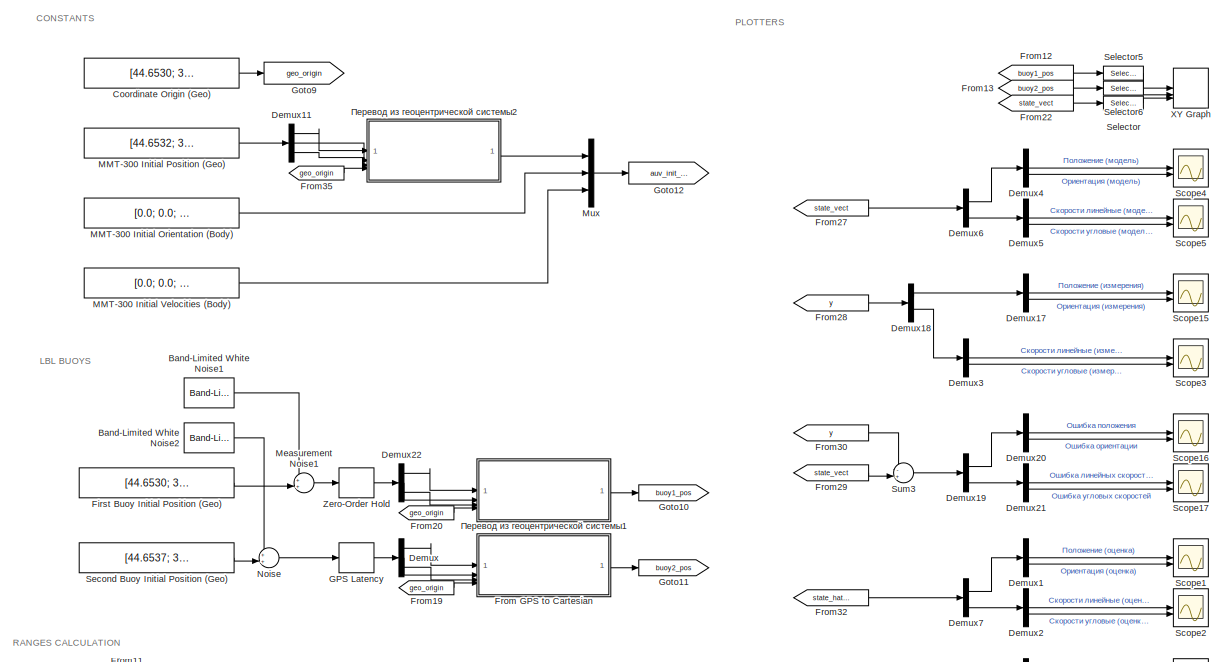
[diagram: root canvas - part 1/3, full width, top band]
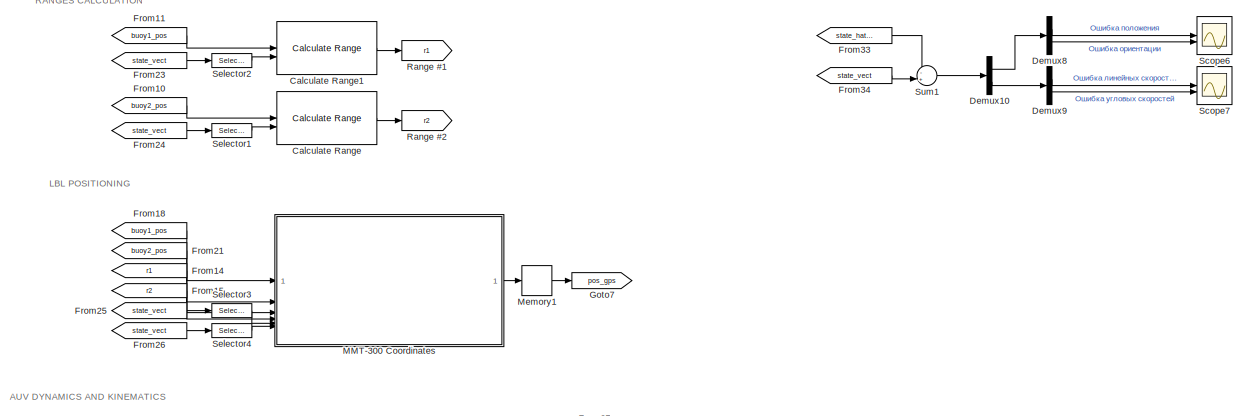
[diagram: root canvas - part 2/3, full width, middle band]
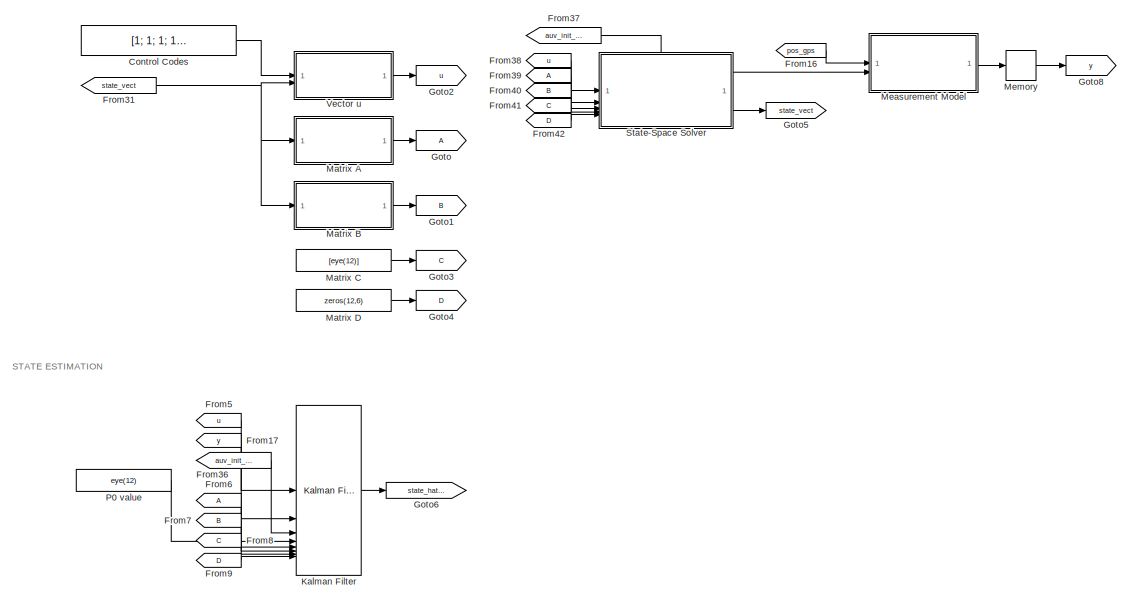
[diagram: root canvas - part 3/3, full width, bottom band]
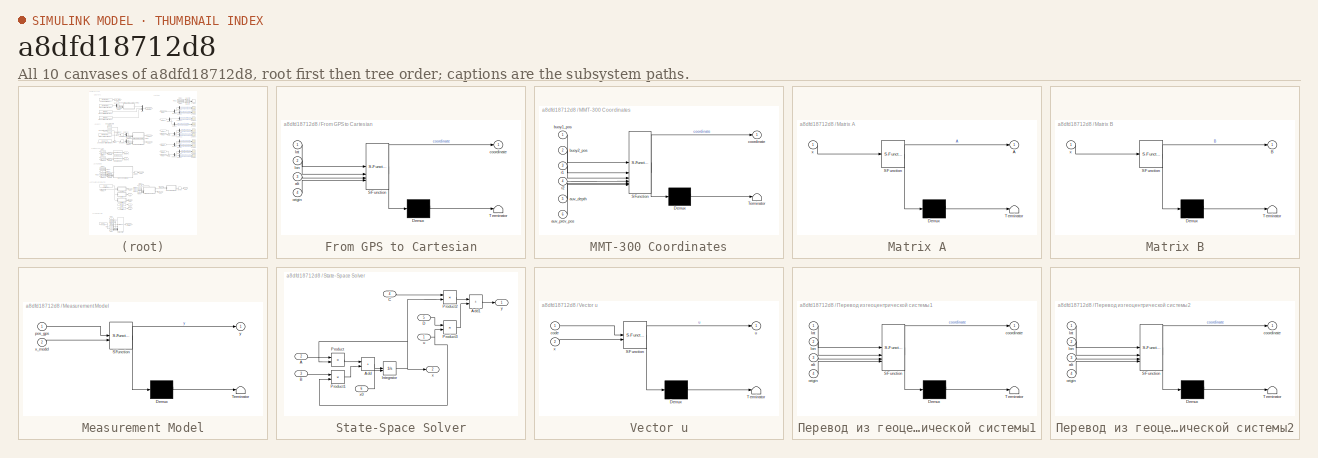
[diagram: thumbnail index - all 10 canvases of the model, root first then tree order]
MODEL slx_a8dfd18712d8
KIND model
CONFIG AbsTol = auto
CONFIG EnableMultiTasking = off
CONFIG FixedStep = auto
CONFIG MaxStep = auto
CONFIG MinStep = auto
CONFIG RelTol = 1e-3
CONFIG SampleTimeConstraint = Unconstrained
CONFIG SolverName = VariableStepAuto
CONFIG StartTime = 0.0
CONFIG StopTime = 60
BLOCK [Reference] Band-Limited White Noise1  REF=simulink/Sources/Band-Limited
White Noise
  SourceBlock = simulink/Sources/Band-Limited\nWhite Noise
  SourceType = Band-Limited White Noise.
BLOCK [Reference] Band-Limited White Noise2  REF=simulink/Sources/Band-Limited
White Noise
  SourceBlock = simulink/Sources/Band-Limited\nWhite Noise
  SourceType = Band-Limited White Noise.
BLOCK [Reference] Calculate Range  REF=aerolibguid/Calculate
Range
  SourceBlock = aerolibguid/Calculate\nRange
  SourceType = Calculate Range
BLOCK [Reference] Calculate Range1  REF=aerolibguid/Calculate
Range
  SourceBlock = aerolibguid/Calculate\nRange
  SourceType = Calculate Range
BLOCK [Constant] Control Codes
  Value = [1; 1; 1; 1; 0; 0]
BLOCK [Constant] Coordinate Origin (Geo)
  Value = [44.6530; 33.5389; 0.5]
BLOCK [Demux] Demux
  Outputs = 3
BLOCK [Demux] Demux1
  Outputs = 2
BLOCK [Demux] Demux10
  Outputs = 2
BLOCK [Demux] Demux11
  Outputs = 3
BLOCK [Demux] Demux17
  Outputs = 2
BLOCK [Demux] Demux18
  Outputs = 2
BLOCK [Demux] Demux19
  Outputs = 2
BLOCK [Demux] Demux2
  Outputs = 2
BLOCK [Demux] Demux20
  Outputs = 2
BLOCK [Demux] Demux21
  Outputs = 2
BLOCK [Demux] Demux22
  Outputs = 3
BLOCK [Demux] Demux3
  Outputs = 2
BLOCK [Demux] Demux4
  Outputs = 2
BLOCK [Demux] Demux5
  Outputs = 2
BLOCK [Demux] Demux6
  Outputs = 2
BLOCK [Demux] Demux7
  Outputs = 2
BLOCK [Demux] Demux8
  Outputs = 2
BLOCK [Demux] Demux9
  Outputs = 2
BLOCK [Constant] First Buoy Initial Position (Geo)
  Value = [44.6530; 33.5389; 0.5]
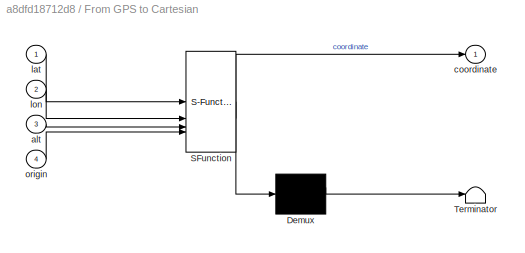
BLOCK [SubSystem] From GPS to Cartesian
  ErrorFcn = Stateflow.Translate.translate
  PermitHierarchicalResolution = ExplicitOnly
  SFBlockType = MATLAB Function
  TreatAsAtomicUnit = on
BLOCK [Demux] From GPS to Cartesian/ Demux 
  Outputs = 1
BLOCK [S-Function] From GPS to Cartesian/ SFunction 
  EnableBusSupport = on
  FunctionName = sf_sfun
  PortCounts = [4 2]
  SFcnIsStateOwnerBlock = off
  SFunctionDeploymentMode = off
  Tag = Stateflow S-Function 7
BLOCK [Terminator] From GPS to Cartesian/ Terminator 
BLOCK [Inport] From GPS to Cartesian/alt
  Port = 3
BLOCK [Outport] From GPS to Cartesian/coordinate
BLOCK [Inport] From GPS to Cartesian/lat
BLOCK [Inport] From GPS to Cartesian/lon
  Port = 2
BLOCK [Inport] From GPS to Cartesian/origin
  Port = 4
BLOCK [From] From10
  GotoTag = buoy2_pos
BLOCK [From] From11
  GotoTag = buoy1_pos
BLOCK [From] From12
  GotoTag = buoy1_pos
BLOCK [From] From13
  GotoTag = buoy2_pos
BLOCK [From] From14
  GotoTag = r1
BLOCK [From] From15
  GotoTag = r2
BLOCK [From] From16
  GotoTag = pos_gps
BLOCK [From] From17
  GotoTag = y
BLOCK [From] From18
  GotoTag = buoy1_pos
BLOCK [From] From19
  GotoTag = geo_origin
BLOCK [From] From20
  GotoTag = geo_origin
BLOCK [From] From21
  GotoTag = buoy2_pos
BLOCK [From] From22
  GotoTag = state_vect
BLOCK [From] From23
  GotoTag = state_vect
BLOCK [From] From24
  GotoTag = state_vect
BLOCK [From] From25
  GotoTag = state_vect
BLOCK [From] From26
  GotoTag = state_vect
BLOCK [From] From27
  GotoTag = state_vect
BLOCK [From] From28
  GotoTag = y
BLOCK [From] From29
  GotoTag = state_vect
BLOCK [From] From30
  GotoTag = y
BLOCK [From] From31
  GotoTag = state_vect
BLOCK [From] From32
  GotoTag = state_hat_vect
BLOCK [From] From33
  GotoTag = state_hat_vect
BLOCK [From] From34
  GotoTag = state_vect
BLOCK [From] From35
  GotoTag = geo_origin
BLOCK [From] From36
  GotoTag = auv_init_state
BLOCK [From] From37
  GotoTag = auv_init_state
BLOCK [From] From38
  GotoTag = u
BLOCK [From] From39
BLOCK [From] From40
  GotoTag = B
BLOCK [From] From41
  GotoTag = C
BLOCK [From] From42
  GotoTag = D
BLOCK [From] From5
  GotoTag = u
BLOCK [From] From6
BLOCK [From] From7
  GotoTag = B
BLOCK [From] From8
  GotoTag = C
BLOCK [From] From9
  GotoTag = D
BLOCK [ZeroOrderHold] GPS Latency
BLOCK [Goto] Goto
BLOCK [Goto] Goto1
  GotoTag = B
BLOCK [Goto] Goto10
  GotoTag = buoy1_pos
BLOCK [Goto] Goto11
  GotoTag = buoy2_pos
BLOCK [Goto] Goto12
  GotoTag = auv_init_state
BLOCK [Goto] Goto2
  GotoTag = u
BLOCK [Goto] Goto3
  GotoTag = C
BLOCK [Goto] Goto4
  GotoTag = D
BLOCK [Goto] Goto5
  GotoTag = state_vect
BLOCK [Goto] Goto6
  GotoTag = state_hat_vect
BLOCK [Goto] Goto7
  GotoTag = pos_gps
BLOCK [Goto] Goto8
  GotoTag = y
BLOCK [Goto] Goto9
  GotoTag = geo_origin
BLOCK [Reference] Kalman Filter  REF=ctrlSharedLib/Kalman Filter
  SourceBlock = ctrlSharedLib/Kalman Filter
  SourceType = ctrlKalmanFilter
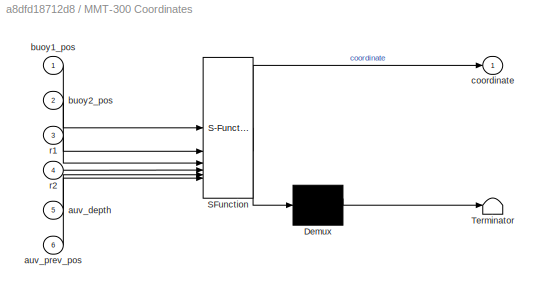
BLOCK [SubSystem] MMT-300 Coordinates
  ErrorFcn = Stateflow.Translate.translate
  PermitHierarchicalResolution = ExplicitOnly
  SFBlockType = MATLAB Function
  TreatAsAtomicUnit = on
BLOCK [Demux] MMT-300 Coordinates/ Demux 
  Outputs = 1
BLOCK [S-Function] MMT-300 Coordinates/ SFunction 
  EnableBusSupport = on
  FunctionName = sf_sfun
  PortCounts = [6 2]
  SFcnIsStateOwnerBlock = off
  SFunctionDeploymentMode = off
  Tag = Stateflow S-Function 11
BLOCK [Terminator] MMT-300 Coordinates/ Terminator 
BLOCK [Inport] MMT-300 Coordinates/auv_depth
  Port = 5
BLOCK [Inport] MMT-300 Coordinates/auv_prev_pos
  Port = 6
BLOCK [Inport] MMT-300 Coordinates/buoy1_pos
BLOCK [Inport] MMT-300 Coordinates/buoy2_pos
  Port = 2
BLOCK [Outport] MMT-300 Coordinates/coordinate
BLOCK [Inport] MMT-300 Coordinates/r1
  Port = 3
BLOCK [Inport] MMT-300 Coordinates/r2
  Port = 4
BLOCK [Constant] MMT-300 Initial Orientation (Body)
  Value = [0.0; 0.0; 0.0]
BLOCK [Constant] MMT-300 Initial Position (Geo)
  Value = [44.6532; 33.5395; 0.5]
BLOCK [Constant] MMT-300 Initial Velocities (Body)
  Value = [0.0; 0.0; 0.0; 0.0; 0.0; 0.0]
BLOCK [SubSystem] Matrix A
  ErrorFcn = Stateflow.Translate.translate
  PermitHierarchicalResolution = ExplicitOnly
  SFBlockType = MATLAB Function
  TreatAsAtomicUnit = on
BLOCK [Demux] Matrix A/ Demux 
  Outputs = 1
BLOCK [S-Function] Matrix A/ SFunction 
  EnableBusSupport = on
  FunctionName = sf_sfun
  Parameters = D_LIN,D_QUAD,I0,M,M_A,m,r_b_b,r_g_b
  PortCounts = [1 2]
  SFcnIsStateOwnerBlock = off
  SFunctionDeploymentMode = off
  Tag = Stateflow S-Function 3
BLOCK [Terminator] Matrix A/ Terminator 
BLOCK [Outport] Matrix A/A
BLOCK [Inport] Matrix A/x
BLOCK [SubSystem] Matrix B
  ErrorFcn = Stateflow.Translate.translate
  PermitHierarchicalResolution = ExplicitOnly
  SFBlockType = MATLAB Function
  TreatAsAtomicUnit = on
BLOCK [Demux] Matrix B/ Demux 
  Outputs = 1
BLOCK [S-Function] Matrix B/ SFunction 
  EnableBusSupport = on
  FunctionName = sf_sfun
  Parameters = M
  PortCounts = [1 2]
  SFcnIsStateOwnerBlock = off
  SFunctionDeploymentMode = off
  Tag = Stateflow S-Function 4
BLOCK [Terminator] Matrix B/ Terminator 
BLOCK [Outport] Matrix B/B
BLOCK [Inport] Matrix B/x
BLOCK [Constant] Matrix C
  Value = [eye(12)]
BLOCK [Constant] Matrix D
  Value = zeros(12,6)
BLOCK [SubSystem] Measurement Model
  ErrorFcn = Stateflow.Translate.translate
  PermitHierarchicalResolution = ExplicitOnly
  SFBlockType = MATLAB Function
  TreatAsAtomicUnit = on
BLOCK [Demux] Measurement Model/ Demux 
  Outputs = 1
BLOCK [S-Function] Measurement Model/ SFunction 
  EnableBusSupport = on
  FunctionName = sf_sfun
  PortCounts = [2 2]
  SFcnIsStateOwnerBlock = off
  SFunctionDeploymentMode = off
  Tag = Stateflow S-Function 13
BLOCK [Terminator] Measurement Model/ Terminator 
BLOCK [Inport] Measurement Model/pos_gps
BLOCK [Inport] Measurement Model/x_model
  Port = 2
BLOCK [Outport] Measurement Model/y
BLOCK [Sum] Measurement Noise1
  Inputs = ++|
BLOCK [Memory] Memory
BLOCK [Memory] Memory1
BLOCK [Mux] Mux
  DisplayOption = bar
  Inputs = 3
BLOCK [Sum] Noise
  Inputs = ++|
BLOCK [Constant] P0 value
  Value = eye(12)
BLOCK [Goto] Range #1
  GotoTag = r1
BLOCK [Goto] Range #2
  GotoTag = r2
BLOCK [Scope] Scope1
  Floating = off
  NumInputPorts = 2
  ScopeSpecificationString = Simulink.scopes.TimeScopeBlockCfg('CurrentConfiguration', extmgr.ConfigurationSet(extmgr.Configuration('Core','General UI',true,'FigureColor',[1 1 1]),extmgr.Configuration('Core','Source UI',true),extmgr.Configuration('Sources','WiredSimulink',true,'DataLoggingVariableName','ScopeData1'),extmgr.Configuration('Visuals','Time Domain',true,'PlotType','Line','SerializedDisplays',{struct('MinYLimReal',...<+2213ch>
BLOCK [Scope] Scope15
  Floating = off
  NumInputPorts = 2
  ScopeSpecificationString = Simulink.scopes.TimeScopeBlockCfg('CurrentConfiguration', extmgr.ConfigurationSet(extmgr.Configuration('Core','General UI',true,'FigureColor',[1 1 1]),extmgr.Configuration('Core','Source UI',true),extmgr.Configuration('Sources','WiredSimulink',true,'DataLoggingVariableName','ETA_MM','DataLogging',true,'DataLoggingSaveFormat','StructureWithTime'),extmgr.Configuration('Visuals','Time Domain',true,'P...<+2316ch>
BLOCK [Scope] Scope16
  Floating = off
  NumInputPorts = 2
  ScopeSpecificationString = Simulink.scopes.TimeScopeBlockCfg('CurrentConfiguration', extmgr.ConfigurationSet(extmgr.Configuration('Core','General UI',true,'FigureColor',[1 1 1]),extmgr.Configuration('Core','Source UI',true),extmgr.Configuration('Sources','WiredSimulink',true,'DataLoggingVariableName','ScopeData3'),extmgr.Configuration('Visuals','Time Domain',true,'PlotType','Line','SerializedDisplays',{struct('MinYLimReal',...<+2242ch>
BLOCK [Scope] Scope17
  Floating = off
  NumInputPorts = 2
  ScopeSpecificationString = Simulink.scopes.TimeScopeBlockCfg('CurrentConfiguration', extmgr.ConfigurationSet(extmgr.Configuration('Core','General UI',true,'FigureColor',[1 1 1]),extmgr.Configuration('Core','Source UI',true),extmgr.Configuration('Sources','WiredSimulink',true,'DataLoggingVariableName','ScopeData4'),extmgr.Configuration('Visuals','Time Domain',true,'PlotType','Line','SerializedDisplays',{struct('MinYLimReal',...<+2242ch>
BLOCK [Scope] Scope2
  Floating = off
  NumInputPorts = 2
  ScopeSpecificationString = Simulink.scopes.TimeScopeBlockCfg('CurrentConfiguration', extmgr.ConfigurationSet(extmgr.Configuration('Core','General UI',true,'FigureColor',[1 1 1]),extmgr.Configuration('Core','Source UI',true),extmgr.Configuration('Sources','WiredSimulink',true,'DataLoggingVariableName','ScopeData2'),extmgr.Configuration('Visuals','Time Domain',true,'PlotType','Line','SerializedDisplays',{struct('MinYLimReal',...<+2224ch>
BLOCK [Scope] Scope3
  Floating = off
  NumInputPorts = 2
  ScopeSpecificationString = Simulink.scopes.TimeScopeBlockCfg('CurrentConfiguration', extmgr.ConfigurationSet(extmgr.Configuration('Core','General UI',true,'FigureColor',[1 1 1]),extmgr.Configuration('Core','Source UI',true),extmgr.Configuration('Sources','WiredSimulink',true,'DataLogging',true,'DataLoggingVariableName','V_MM','DataLoggingSaveFormat','StructureWithTime'),extmgr.Configuration('Visuals','Time Domain',true,'Plo...<+2280ch>
BLOCK [Scope] Scope4
  Floating = off
  NumInputPorts = 2
  ScopeSpecificationString = Simulink.scopes.TimeScopeBlockCfg('CurrentConfiguration', extmgr.ConfigurationSet(extmgr.Configuration('Core','General UI',true,'FigureColor',[1 1 1]),extmgr.Configuration('Core','Source UI',true),extmgr.Configuration('Sources','WiredSimulink',true,'DataLoggingVariableName','ETA','DataLogging',true,'DataLoggingSaveFormat','StructureWithTime'),extmgr.Configuration('Visuals','Time Domain',true,'Plot...<+2341ch>
BLOCK [Scope] Scope5
  Floating = off
  NumInputPorts = 2
  ScopeSpecificationString = Simulink.scopes.TimeScopeBlockCfg('CurrentConfiguration', extmgr.ConfigurationSet(extmgr.Configuration('Core','General UI',true,'FigureColor',[1 1 1]),extmgr.Configuration('Core','Source UI',true),extmgr.Configuration('Sources','WiredSimulink',true,'DataLoggingVariableName','ScopeData4'),extmgr.Configuration('Visuals','Time Domain',true,'PlotType','Line','SerializedDisplays',{struct('MinYLimReal',...<+2221ch>
BLOCK [Scope] Scope6
  Floating = off
  NumInputPorts = 2
  ScopeSpecificationString = Simulink.scopes.TimeScopeBlockCfg('CurrentConfiguration', extmgr.ConfigurationSet(extmgr.Configuration('Core','General UI',true,'FigureColor',[1 1 1]),extmgr.Configuration('Core','Source UI',true),extmgr.Configuration('Sources','WiredSimulink',true,'DataLoggingVariableName','ScopeData5'),extmgr.Configuration('Visuals','Time Domain',true,'PlotType','Line','SerializedDisplays',{struct('MinYLimReal',...<+2211ch>
BLOCK [Scope] Scope7
  Floating = off
  NumInputPorts = 2
  ScopeSpecificationString = Simulink.scopes.TimeScopeBlockCfg('CurrentConfiguration', extmgr.ConfigurationSet(extmgr.Configuration('Core','General UI',true,'FigureColor',[1 1 1]),extmgr.Configuration('Core','Source UI',true),extmgr.Configuration('Sources','WiredSimulink',true,'DataLoggingVariableName','ScopeData6'),extmgr.Configuration('Visuals','Time Domain',true,'PlotType','Line','SerializedDisplays',{struct('MinYLimReal',...<+2194ch>
BLOCK [Constant] Second Buoy Initial Position (Geo)
  Value = [44.6537; 33.5396; 0.5]
BLOCK [Selector] Selector
  IndexOptions = Index vector (dialog)
  Indices = [1 2]
  InputPortWidth = 12
  OutputSizes = 1
BLOCK [Selector] Selector1
  IndexOptions = Index vector (dialog)
  Indices = [1 2 3]
  InputPortWidth = 12
  OutputSizes = 1
BLOCK [Selector] Selector2
  IndexOptions = Index vector (dialog)
  Indices = [1 2 3]
  InputPortWidth = 12
  OutputSizes = 1
BLOCK [Selector] Selector3
  IndexOptions = Index vector (dialog)
  Indices = [3]
  InputPortWidth = 12
  OutputSizes = 1
BLOCK [Selector] Selector4
  IndexOptions = Index vector (dialog)
  Indices = [1 2]
  InputPortWidth = 12
  OutputSizes = 1
BLOCK [Selector] Selector5
  IndexOptions = Index vector (dialog)
  Indices = [1 2]
  InputPortWidth = 3
  OutputSizes = 1
BLOCK [Selector] Selector6
  IndexOptions = Index vector (dialog)
  Indices = [1 2]
  InputPortWidth = 3
  OutputSizes = 1
BLOCK [SubSystem] State-Space Solver
  PortSchema = {"entries":[{"content":{"sides":[{"content":{"connectorIds":["In1","In2","In3","In4","In5"]},"type":"ConnectorPlacement.EquallySpacedRectSide","uuid":"3396e803-b255-47cb-93e0-45c7cfe2ef50"},{"content":{"connectorIds":["Out1","Out2"],"side":"RIGHT"},"type":"ConnectorPlacement.EquallySpacedRectSide","uuid":"aa3f7afc-7592-49bf-8a0b-f10c1ca55260"},{"content":{"connectorIds":["In6"],"side":"TOP"},"type...<+276ch>
BLOCK [Inport] State-Space Solver/A
  Port = 2
BLOCK [Sum] State-Space Solver/Add
  IconShape = rectangular
BLOCK [Sum] State-Space Solver/Add1
  IconShape = rectangular
BLOCK [Inport] State-Space Solver/B
  Port = 3
BLOCK [Inport] State-Space Solver/C
  Port = 4
BLOCK [Inport] State-Space Solver/D
  Port = 5
BLOCK [Integrator] State-Space Solver/Integrator
  InitialConditionSource = external
BLOCK [Product] State-Space Solver/Product
  Multiplication = Matrix(*)
BLOCK [Product] State-Space Solver/Product1
  Multiplication = Matrix(*)
BLOCK [Product] State-Space Solver/Product2
  Multiplication = Matrix(*)
BLOCK [Product] State-Space Solver/Product3
  Multiplication = Matrix(*)
BLOCK [Inport] State-Space Solver/u
BLOCK [Outport] State-Space Solver/x
  Port = 2
BLOCK [Inport] State-Space Solver/x0
  Port = 6
BLOCK [Outport] State-Space Solver/y
BLOCK [Sum] Sum1
  Inputs = -+|
BLOCK [Sum] Sum3
  Inputs = -+|
BLOCK [SubSystem] Vector u
  ErrorFcn = Stateflow.Translate.translate
  PermitHierarchicalResolution = ExplicitOnly
  SFBlockType = MATLAB Function
  TreatAsAtomicUnit = on
BLOCK [Demux] Vector u/ Demux 
  Outputs = 1
BLOCK [S-Function] Vector u/ SFunction 
  EnableBusSupport = on
  FunctionName = sf_sfun
  Parameters = B,T,m,p,r_b_b,r_g_b
  PortCounts = [2 2]
  SFcnIsStateOwnerBlock = off
  SFunctionDeploymentMode = off
  Tag = Stateflow S-Function 5
BLOCK [Terminator] Vector u/ Terminator 
BLOCK [Inport] Vector u/code
BLOCK [Outport] Vector u/u
BLOCK [Inport] Vector u/x
  Port = 2
BLOCK [Record] XY Graph
  CompatibilityTag = XY
  FileSettingsInternal = {"entries":[{"content":{"excelSettings":{"content":{},"type":"Streamout.ExcelSettings"}},"type":"Streamout.FileSettingStorage","uuid":"ec667d80-6cd4-4691-8339-9d7e799eb6ac"}],"packageUris":["http://schema.mathworks.com/mf0/streamout_blocks/R2020a"],"version":"1.0"}
  Layout = [1 1]
  SignalsInternal = {"entries":[{"content":{"signals":[{"content":{"blockPath":["auv_simulink/XY Graph"],"channel":[],"dimensions":[2],"domain":"auv_simulink/XY Graph","hasChildren":true,"lineColor":"#64d413","plots":[],"port":1,"sid":[""],"signalID":4232,"signalName":"Selector5"},"type":"RecordBlkView.Signal","uuid":"80c9887f-3436-4141-83dd-de9e3ed14b6a"},{"content":{"blockPath":["auv_simulink/XY Graph"],"channel":[...<+2538ch>
  VisualizationBindings = {"xyplotplugin":{"info":[{"series":[{"bindingParametersList":[{"parameter":"X-Axis","signalID":4243,"signalName":"Selector(1)"},{"parameter":"Y-Axis","signalID":4249,"signalName":"Selector(2)"}],"seriesID":21020},{"bindingParametersList":[{"parameter":"X-Axis","signalID":4238,"signalName":"Selector6(1)"},{"parameter":"Y-Axis","signalID":4248,"signalName":"Selector6(2)"}],"seriesID":577},{"bindingP...<+277ch>
  st = -1
BLOCK [ZeroOrderHold] Zero-Order Hold
BLOCK [SubSystem] Перевод из геоцентрической системы1
  ErrorFcn = Stateflow.Translate.translate
  PermitHierarchicalResolution = ExplicitOnly
  SFBlockType = MATLAB Function
  TreatAsAtomicUnit = on
BLOCK [Demux] Перевод из геоцентрической системы1/ Demux 
  Outputs = 1
BLOCK [S-Function] Перевод из геоцентрической системы1/ SFunction 
  EnableBusSupport = on
  FunctionName = sf_sfun
  PortCounts = [4 2]
  SFcnIsStateOwnerBlock = off
  SFunctionDeploymentMode = off
  Tag = Stateflow S-Function 8
BLOCK [Terminator] Перевод из геоцентрической системы1/ Terminator 
BLOCK [Inport] Перевод из геоцентрической системы1/alt
  Port = 3
BLOCK [Outport] Перевод из геоцентрической системы1/coordinate
BLOCK [Inport] Перевод из геоцентрической системы1/lat
BLOCK [Inport] Перевод из геоцентрической системы1/lon
  Port = 2
BLOCK [Inport] Перевод из геоцентрической системы1/origin
  Port = 4
BLOCK [SubSystem] Перевод из геоцентрической системы2
  ErrorFcn = Stateflow.Translate.translate
  PermitHierarchicalResolution = ExplicitOnly
  SFBlockType = MATLAB Function
  TreatAsAtomicUnit = on
BLOCK [Demux] Перевод из геоцентрической системы2/ Demux 
  Outputs = 1
BLOCK [S-Function] Перевод из геоцентрической системы2/ SFunction 
  EnableBusSupport = on
  FunctionName = sf_sfun
  PortCounts = [4 2]
  SFcnIsStateOwnerBlock = off
  SFunctionDeploymentMode = off
  Tag = Stateflow S-Function 1
BLOCK [Terminator] Перевод из геоцентрической системы2/ Terminator 
BLOCK [Inport] Перевод из геоцентрической системы2/alt
  Port = 3
BLOCK [Outport] Перевод из геоцентрической системы2/coordinate
BLOCK [Inport] Перевод из геоцентрической системы2/lat
BLOCK [Inport] Перевод из геоцентрической системы2/lon
  Port = 2
BLOCK [Inport] Перевод из геоцентрической системы2/origin
  Port = 4
ANNOTATION (root): AUV DYNAMICS AND KINEMATICS
ANNOTATION (root): CONSTANTS
ANNOTATION (root): LBL BUOYS
ANNOTATION (root): LBL POSITIONING
ANNOTATION (root): PLOTTERS
ANNOTATION (root): RANGES CALCULATION
ANNOTATION (root): STATE ESTIMATION
LINE Band-Limited White Noise1:1 -> Measurement Noise1:1
LINE Band-Limited White Noise2:1 -> Noise:1
LINE Calculate Range1:1 -> Range #1:1
LINE Calculate Range:1 -> Range #2:1
LINE Control Codes:1 -> Vector u:1
LINE Coordinate Origin (Geo):1 -> Goto9:1
LINE Demux10:1 -> Demux8:1
LINE Demux10:2 -> Demux9:1
LINE Demux11:1 -> Перевод из геоцентрической системы2:1
LINE Demux11:2 -> Перевод из геоцентрической системы2:2
LINE Demux11:3 -> Перевод из геоцентрической системы2:3
LINE Demux17:1 -> Scope15:1
LINE Demux17:2 -> Scope15:2
LINE Demux18:1 -> Demux17:1
LINE Demux18:2 -> Demux3:1
LINE Demux19:1 -> Demux20:1
LINE Demux19:2 -> Demux21:1
LINE Demux1:1 -> Scope1:1
LINE Demux1:2 -> Scope1:2
LINE Demux20:1 -> Scope16:1
LINE Demux20:2 -> Scope16:2
LINE Demux21:1 -> Scope17:1
LINE Demux21:2 -> Scope17:2
LINE Demux22:1 -> Перевод из геоцентрической системы1:1
LINE Demux22:2 -> Перевод из геоцентрической системы1:2
LINE Demux22:3 -> Перевод из геоцентрической системы1:3
LINE Demux2:1 -> Scope2:1
LINE Demux2:2 -> Scope2:2
LINE Demux3:1 -> Scope3:1
LINE Demux3:2 -> Scope3:2
LINE Demux4:1 -> Scope4:1
LINE Demux4:2 -> Scope4:2
LINE Demux5:1 -> Scope5:1
LINE Demux5:2 -> Scope5:2
LINE Demux6:1 -> Demux4:1
LINE Demux6:2 -> Demux5:1
LINE Demux7:1 -> Demux1:1
LINE Demux7:2 -> Demux2:1
LINE Demux8:1 -> Scope6:1
LINE Demux8:2 -> Scope6:2
LINE Demux9:1 -> Scope7:1
LINE Demux9:2 -> Scope7:2
LINE Demux:1 -> From GPS to Cartesian:1
LINE Demux:2 -> From GPS to Cartesian:2
LINE Demux:3 -> From GPS to Cartesian:3
LINE First Buoy Initial Position (Geo):1 -> Measurement Noise1:2
LINE From GPS to Cartesian:1 -> Goto11:1
LINE From10:1 -> Calculate Range:1
LINE From11:1 -> Calculate Range1:1
LINE From12:1 -> Selector5:1
LINE From13:1 -> Selector6:1
LINE From14:1 -> MMT-300 Coordinates:3
LINE From15:1 -> MMT-300 Coordinates:4
LINE From16:1 -> Measurement Model:1
LINE From17:1 -> Kalman Filter:2
LINE From18:1 -> MMT-300 Coordinates:1
LINE From19:1 -> From GPS to Cartesian:4
LINE From20:1 -> Перевод из геоцентрической системы1:4
LINE From21:1 -> MMT-300 Coordinates:2
LINE From22:1 -> Selector:1
LINE From23:1 -> Selector2:1
LINE From24:1 -> Selector1:1
LINE From25:1 -> Selector3:1
LINE From26:1 -> Selector4:1
LINE From27:1 -> Demux6:1
LINE From28:1 -> Demux18:1
LINE From29:1 -> Sum3:2
LINE From30:1 -> Sum3:1
NET From31:1 -> Matrix A:1, Matrix B:1, Vector u:2
LINE From32:1 -> Demux7:1
LINE From33:1 -> Sum1:1
LINE From34:1 -> Sum1:2
LINE From35:1 -> Перевод из геоцентрической системы2:4
LINE From36:1 -> Kalman Filter:3
LINE From37:1 -> State-Space Solver:6
LINE From38:1 -> State-Space Solver:1
LINE From39:1 -> State-Space Solver:2
LINE From40:1 -> State-Space Solver:3
LINE From41:1 -> State-Space Solver:4
LINE From42:1 -> State-Space Solver:5
LINE From5:1 -> Kalman Filter:1
LINE From6:1 -> Kalman Filter:5
LINE From7:1 -> Kalman Filter:6
LINE From8:1 -> Kalman Filter:7
LINE From9:1 -> Kalman Filter:8
LINE GPS Latency:1 -> Demux:1
LINE Kalman Filter:1 -> Goto6:1
LINE MMT-300 Coordinates:1 -> Memory1:1
LINE MMT-300 Initial Orientation (Body):1 -> Mux:2
LINE MMT-300 Initial Position (Geo):1 -> Demux11:1
LINE MMT-300 Initial Velocities (Body):1 -> Mux:3
LINE Matrix A:1 -> Goto:1
LINE Matrix B:1 -> Goto1:1
LINE Matrix C:1 -> Goto3:1
LINE Matrix D:1 -> Goto4:1
LINE Measurement Model:1 -> Memory:1
LINE Measurement Noise1:1 -> Zero-Order Hold:1
LINE Memory1:1 -> Goto7:1
LINE Memory:1 -> Goto8:1
LINE Mux:1 -> Goto12:1
LINE Noise:1 -> GPS Latency:1
LINE P0 value:1 -> Kalman Filter:4
LINE Second Buoy Initial Position (Geo):1 -> Noise:2
LINE Selector1:1 -> Calculate Range:2
LINE Selector2:1 -> Calculate Range1:2
LINE Selector3:1 -> MMT-300 Coordinates:5
LINE Selector4:1 -> MMT-300 Coordinates:6
LINE Selector5:1 -> XY Graph:1
LINE Selector6:1 -> XY Graph:2
LINE Selector:1 -> XY Graph:3
LINE State-Space Solver/A:1 -> State-Space Solver/Product:1
LINE State-Space Solver/Add1:1 -> State-Space Solver/y:1
LINE State-Space Solver/Add:1 -> State-Space Solver/Integrator:1
LINE State-Space Solver/B:1 -> State-Space Solver/Product1:1
LINE State-Space Solver/C:1 -> State-Space Solver/Product2:1
LINE State-Space Solver/D:1 -> State-Space Solver/Product3:1
NET State-Space Solver/Integrator:1 -> State-Space Solver/Product2:2, State-Space Solver/Product:2, State-Space Solver/x:1
LINE State-Space Solver/Product1:1 -> State-Space Solver/Add:2
LINE State-Space Solver/Product2:1 -> State-Space Solver/Add1:1
LINE State-Space Solver/Product3:1 -> State-Space Solver/Add1:2
LINE State-Space Solver/Product:1 -> State-Space Solver/Add:1
NET State-Space Solver/u:1 -> State-Space Solver/Product1:2, State-Space Solver/Product3:2
LINE State-Space Solver/x0:1 -> State-Space Solver/Integrator:2
LINE State-Space Solver:1 -> Measurement Model:2
LINE State-Space Solver:2 -> Goto5:1
LINE Sum1:1 -> Demux10:1
LINE Sum3:1 -> Demux19:1
LINE Vector u:1 -> Goto2:1
LINE Zero-Order Hold:1 -> Demux22:1
LINE Перевод из геоцентрической системы1:1 -> Goto10:1
LINE Перевод из геоцентрической системы2:1 -> Mux:1
note: NET lines group one-source signal fan-out (src -> all destinations, sorted); 1:1 wires keep LINE
CHART Перевод из геоцентрической системы2 states=1 transitions=1
  STATE_LABEL 'eML_blk_kernel()'
  STATE_LABEL 'SCRIPT:\nfunction coordinate = geo2ned(lat, lon, alt, origin)\n    coordinate = zeros(3,1);\n    a = 6378137.0;\n    b = 6356752.3142;\n    B = deg2rad(lat);\n    L = deg2rad(lon);\n    H = alt;\n    e2 = (a^2 - b^2) / a^2;\n    NB = a / sqrt(1 - e2*sin(B)^2);\n    x = (NB + H) * cos(B) * cos(L);\n    y = (NB + H) * cos(B) * sin(L);\n    z = ((b/a)^2 * NB + H) * sin(B);\n\n    lat0 = origin(1);\n    lon0 = origi...<+504ch>'
CHART Matrix A states=1 transitions=1
  STATE_LABEL 'eML_blk_kernel()'
  STATE_LABEL 'SCRIPT:\nfunction A = matrix_A(x, M, I0, r_g_b, m, r_b_b, M_A, D_LIN, D_QUAD)\nn = 6;\neta = x(1:n); \nv = x(7:end);\n\n%% ВСПОМОГАТЕЛЬНЫЕ ФУНКЦИИ\n% преобразование в кососимметричную матрицу\nS = @(x)([ 0 -x(3) x(2); x(3) 0 -x(1); -x(2) x(1) 0 ]); \n\n%% РАСЧЕТ ЯКОБИАНА\nJ_k_o = @(eta)[ 1  0           -sin(eta(5)); ...\n                0  cos(eta(4))  cos(eta(5))*sin(eta(4)); ...\n                0 -sin(eta(4...<+1412ch>'
CHART Matrix B states=1 transitions=1
  STATE_LABEL 'eML_blk_kernel()'
  STATE_LABEL 'SCRIPT:\nfunction B = matrix_B(x, M)\nn = 6;\nB = [zeros(n); M^-1];'
CHART Vector u states=1 transitions=1
  STATE_LABEL 'eML_blk_kernel()'
  STATE_LABEL 'SCRIPT:\nfunction u = vector_u(code,x, T, p, B, m, r_g_b, r_b_b)\nn = 6;\neta = x(1:n); \n\n%% РАСЧЕТ g(n)\nx_g = r_g_b(1); y_g = r_g_b(2); z_g = r_g_b(3);\nx_b = r_b_b(1); y_b = r_b_b(2); z_b = r_b_b(3);\ng = @(eta)[ (m*9.81-B)*sin(eta(5)); \n           -(m*9.81-B)*cos(eta(5))*sin(eta(4)); \n           -(m*9.81-B)*cos(eta(5))*cos(eta(4));\n           -(y_g*m*9.81-y_b*B)*cos(eta(5))*cos(eta(4)) + ...\n       ...<+1420ch>'
CHART From GPS to Cartesian states=1 transitions=1
  STATE_LABEL 'eML_blk_kernel()'
  STATE_LABEL 'SCRIPT:\nfunction coordinate = geo2ned(lat, lon, alt, origin)\n    coordinate = zeros(3,1);\n    a = 6378137.0;\n    b = 6356752.3142;\n    B = deg2rad(lat);\n    L = deg2rad(lon);\n    H = alt;\n    e2 = (a^2 - b^2) / a^2;\n    NB = a / sqrt(1 - e2*sin(B)^2);\n    x = (NB + H) * cos(B) * cos(L);\n    y = (NB + H) * cos(B) * sin(L);\n    z = ((b/a)^2 * NB + H) * sin(B);\n\n    lat0 = origin(1);\n    lon0 = origi...<+499ch>'
CHART Перевод из геоцентрической системы1 states=1 transitions=1
  STATE_LABEL 'eML_blk_kernel()'
  STATE_LABEL 'SCRIPT:\nfunction coordinate = geo2ned(lat, lon, alt, origin)\n    coordinate = zeros(3,1);\n    a = 6378137.0;\n    b = 6356752.3142;\n    B = deg2rad(lat);\n    L = deg2rad(lon);\n    H = alt;\n    e2 = (a^2 - b^2) / a^2;\n    NB = a / sqrt(1 - e2*sin(B)^2);\n    x = (NB + H) * cos(B) * cos(L);\n    y = (NB + H) * cos(B) * sin(L);\n    z = ((b/a)^2 * NB + H) * sin(B);\n\n    lat0 = origin(1);\n    lon0 = origi...<+499ch>'
CHART MMT-300 Coordinates states=1 transitions=1
  STATE_LABEL 'eML_blk_kernel()'
  STATE_LABEL 'SCRIPT:\nfunction coordinate = compute_coordinates(buoy1_pos, buoy2_pos, r1, r2, auv_depth, auv_prev_pos)\nx_b1 = buoy1_pos(1); y_b1 = buoy1_pos(2); z_b1 = 0;\nx_b2 = buoy2_pos(1); y_b2 = buoy2_pos(2); z_b2 = 0;\n\n%% https://stackoverflow.com/questions/5238566/intersection-points-of-two-circles-in-matlab\n\nA = [x_b1 y_b1]; %# center of the first circle\nB = [x_b2 y_b2]; %# center of the second circle\na ...<+992ch>'
CHART Measurement Model states=1 transitions=1
  STATE_LABEL 'eML_blk_kernel()'
  STATE_LABEL 'SCRIPT:\nfunction y = MM(pos_gps, x_model)\npos_model = x_model(1:3); % imu + gps + pressure\nori_model = x_model(4:6); % imu\nlinvel_model = x_model(7:9); % imu + doppler\nangvel_model = x_model(10:12); % imu\n\ny = x_model;\ny(1:2) = pos_gps;\ny(3) = y(3) + randn(1) / 8;\ny(4:6) = y(4:6) + randn(3,1) ./ 60;\ny(7:9) = y(7:9) + randn(3,1) ./ 100;\ny(9) = y(9) + randn(1) ./ 50;\ny(10:12) = y(10:12) + randn(3,1)...<+8ch>'
CHART  states=0 transitions=0
CHART  states=0 transitions=0
CHART  states=0 transitions=0
CHART  states=0 transitions=0
CHART  states=0 transitions=0
CHART  states=0 transitions=0
CHART  states=0 transitions=0
CHART  states=0 transitions=0
